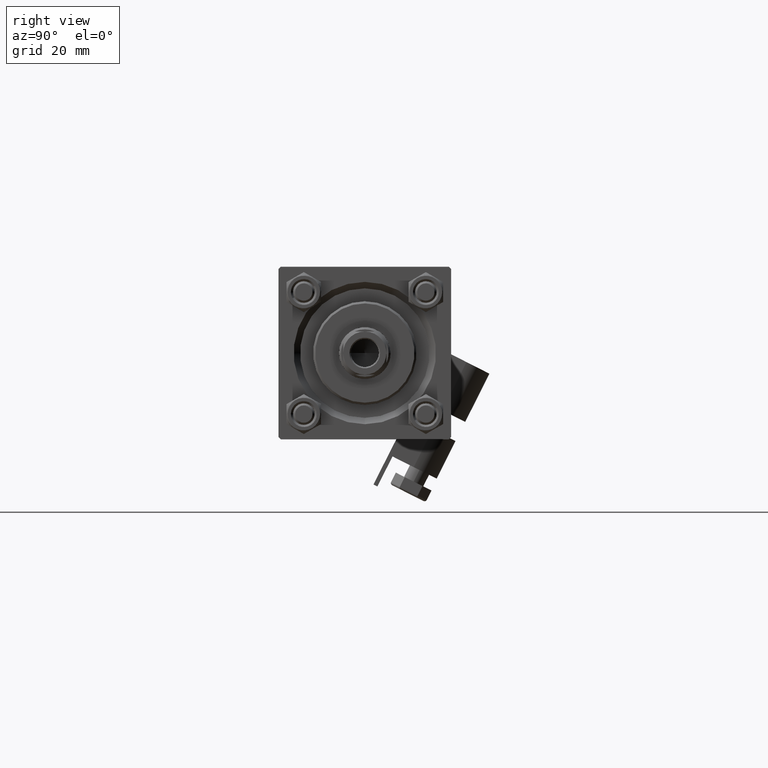
[diagram: clean part render]
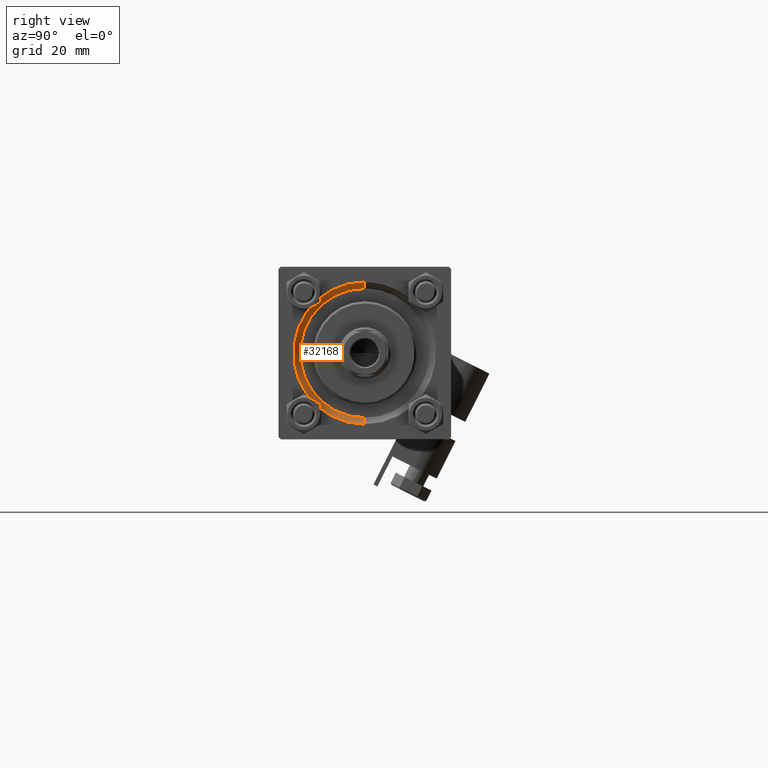
[diagram: same view with one face highlighted and labeled with its STEP entity id]
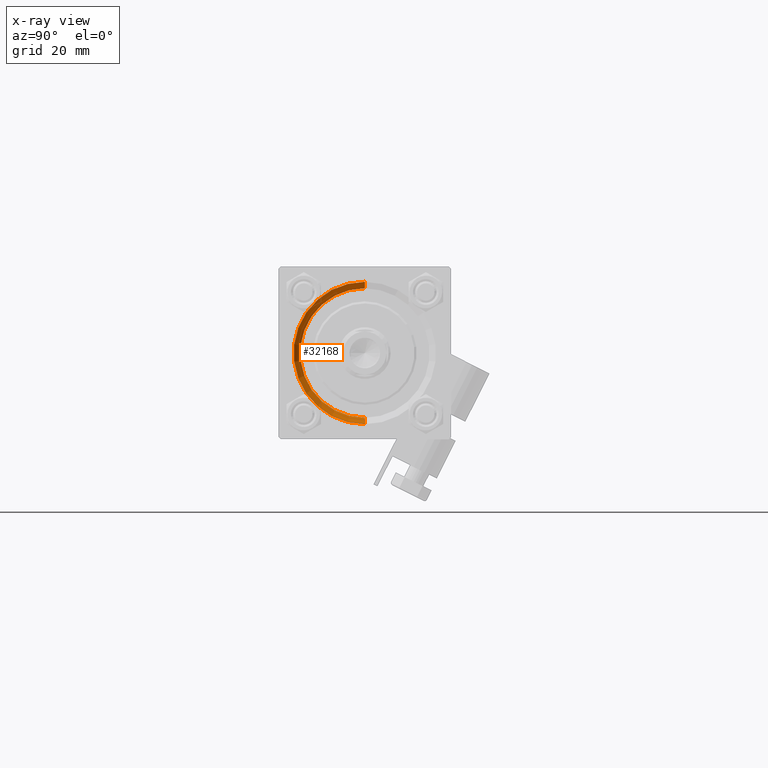
[diagram: x-ray of the same camera — body ghosted, the highlighted face saturated]
A machine part, right view. The second image highlights one B-rep face of the part: STEP entity #32168.
The next image is the same camera in x-ray: the body ghosted, the highlighted face saturated — about 0% of this face is hidden behind the body in this view.
In plain terms, the highlighted conical surface has half-angle 45 deg.
Its self-contained STEP definition (entity closure, byte-faithful):
#1037 = ORIENTED_EDGE ( 'NONE', *, *, #34563, .F. ) ;
#2063 = CARTESIAN_POINT ( 'NONE',  ( 119.0000000000000142, 0.000000000000000000, 0.000000000000000000 ) ) ;
#2314 = ORIENTED_EDGE ( 'NONE', *, *, #41411, .T. ) ;
#2939 = VERTEX_POINT ( 'NONE', #3422 ) ;
#3422 = CARTESIAN_POINT ( 'NONE',  ( 119.0000000000000142, 2.020667218593134678E-15, 16.50000000000001421 ) ) ;
#3702 = DIRECTION ( 'NONE',  ( 0.000000000000000000, 0.000000000000000000, -1.000000000000000000 ) ) ;
#5248 = CARTESIAN_POINT ( 'NONE',  ( 117.5000000000000000, 0.000000000000000000, -15.00000000000000000 ) ) ;
#6864 = CARTESIAN_POINT ( 'NONE',  ( 119.0000000000000142, 0.000000000000000000, -16.50000000000001421 ) ) ;
#7016 = EDGE_LOOP ( 'NONE', ( #1037, #2314, #21569, #20300 ) ) ;
#7453 = CIRCLE ( 'NONE', #9898, 16.50000000000001421 ) ;
#8550 = VECTOR ( 'NONE', #26934, 1000.000000000000114 ) ;
#9898 = AXIS2_PLACEMENT_3D ( 'NONE', #2063, #10037, #17759 ) ;
#10037 = DIRECTION ( 'NONE',  ( -1.000000000000000000, -0.000000000000000000, -0.000000000000000000 ) ) ;
#17759 = DIRECTION ( 'NONE',  ( 0.000000000000000000, 0.000000000000000000, 1.000000000000000000 ) ) ;
#19928 = EDGE_CURVE ( 'NONE', #27965, #2939, #7453, .T. ) ;
#19962 = AXIS2_PLACEMENT_3D ( 'NONE', #46658, #50752, #34558 ) ;
#19972 = CARTESIAN_POINT ( 'NONE',  ( 117.5000000000000000, 1.836970198721029589E-15, 15.00000000000000000 ) ) ;
#20300 = ORIENTED_EDGE ( 'NONE', *, *, #30550, .F. ) ;
#21182 = DIRECTION ( 'NONE',  ( 0.7071067811865474617, 0.000000000000000000, -0.7071067811865474617 ) ) ;
#21474 = VECTOR ( 'NONE', #21182, 1000.000000000000114 ) ;
#21569 = ORIENTED_EDGE ( 'NONE', *, *, #19928, .F. ) ;
#23231 = DIRECTION ( 'NONE',  ( 1.000000000000000000, 0.000000000000000000, 0.000000000000000000 ) ) ;
#24781 = CARTESIAN_POINT ( 'NONE',  ( 117.5000000000000000, 0.000000000000000000, -15.00000000000000000 ) ) ;
#25511 = VERTEX_POINT ( 'NONE', #5248 ) ;
#26493 = CIRCLE ( 'NONE', #19962, 15.00000000000000000 ) ;
#26934 = DIRECTION ( 'NONE',  ( 0.7071067811865474617, 8.659560562354932858E-17, 0.7071067811865474617 ) ) ;
#27965 = VERTEX_POINT ( 'NONE', #6864 ) ;
#29739 = VERTEX_POINT ( 'NONE', #30395 ) ;
#30395 = CARTESIAN_POINT ( 'NONE',  ( 117.5000000000000000, 1.836970198721029589E-15, 15.00000000000000000 ) ) ;
#30550 = EDGE_CURVE ( 'NONE', #25511, #27965, #40694, .T. ) ;
#31277 = LINE ( 'NONE', #19972, #8550 ) ;
#32168 = ADVANCED_FACE ( 'NONE', ( #34521 ), #44505, .F. ) ;
#34521 = FACE_OUTER_BOUND ( 'NONE', #7016, .T. ) ;
#34558 = DIRECTION ( 'NONE',  ( 0.000000000000000000, 0.000000000000000000, 1.000000000000000000 ) ) ;
#34563 = EDGE_CURVE ( 'NONE', #29739, #25511, #26493, .T. ) ;
#40694 = LINE ( 'NONE', #24781, #21474 ) ;
#41411 = EDGE_CURVE ( 'NONE', #29739, #2939, #31277, .T. ) ;
#44505 = CONICAL_SURFACE ( 'NONE', #47774, 15.00000000000000000, 0.7853981633974482790 ) ;
#46116 = CARTESIAN_POINT ( 'NONE',  ( 117.5000000000000000, 0.000000000000000000, 0.000000000000000000 ) ) ;
#46658 = CARTESIAN_POINT ( 'NONE',  ( 117.5000000000000000, 0.000000000000000000, 0.000000000000000000 ) ) ;
#47774 = AXIS2_PLACEMENT_3D ( 'NONE', #46116, #23231, #3702 ) ;
#50752 = DIRECTION ( 'NONE',  ( 1.000000000000000000, 0.000000000000000000, 0.000000000000000000 ) ) ;